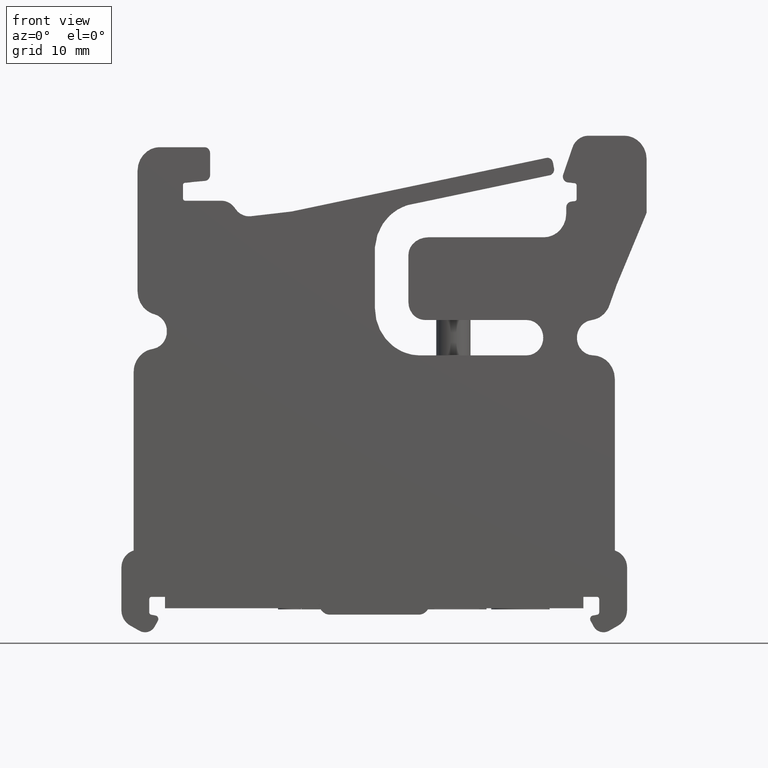
[diagram: clean part render]
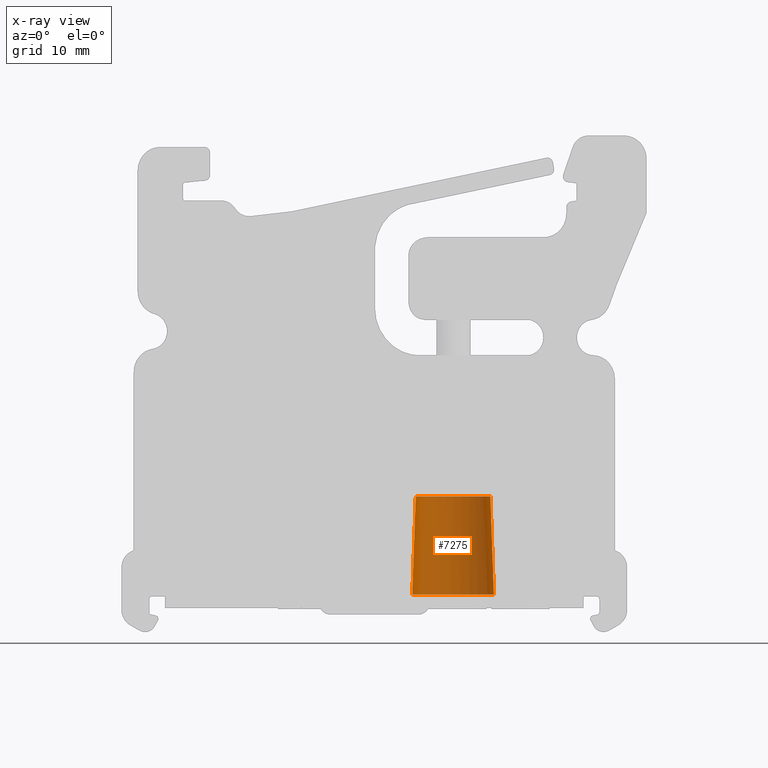
[diagram: x-ray — body ghosted, one internal face saturated and labeled with its STEP entity id]
A machine part, front view, then the same camera in x-ray: the body is ghosted and one INTERNAL B-rep face — a face not visible from any outside direction — is saturated and labeled: STEP entity #7275.
In plain terms, the highlighted face is a freeform B-spline surface patch.
Its self-contained STEP definition (entity closure, byte-faithful):
#2440 =( BOUNDED_SURFACE ( )  B_SPLINE_SURFACE ( 1, 3, ( 
 ( #3788, #3829, #3822, #3805, #3836, #3808, #3789 ),
 ( #3831, #3837, #3791, #3792, #3823, #3793, #3806 ) ),
 .UNSPECIFIED., .F., .F., .T. ) 
 B_SPLINE_SURFACE_WITH_KNOTS ( ( 2, 2 ),
 ( 4, 3, 4 ),
 ( 0.0000000000000000000, 1.000000000000000000 ),
 ( 0.0000000000000000000, 0.5000000000000000000, 1.000000000000000000 ),
 .UNSPECIFIED. ) 
 GEOMETRIC_REPRESENTATION_ITEM ( )  RATIONAL_B_SPLINE_SURFACE ( (
 ( 1.000000000000000000, 0.3333333333333333100, 0.3333333333333333100, 1.000000000000000000, 0.3333333333333333100, 0.3333333333333333100, 1.000000000000000000),
 ( 1.000000000000000000, 0.3333333333333333100, 0.3333333333333333100, 1.000000000000000000, 0.3333333333333333100, 0.3333333333333333100, 1.000000000000000000) ) ) 
 REPRESENTATION_ITEM ( '' )  SURFACE ( )  );
#2604 =( BOUNDED_CURVE ( )  B_SPLINE_CURVE ( 3, ( #13323, #13303, #13304, #13329 ),
 .UNSPECIFIED., .F., .T. ) 
 B_SPLINE_CURVE_WITH_KNOTS ( ( 4, 4 ),
 ( 0.0000000000000000000, 0.01022317686010355100 ),
 .UNSPECIFIED. ) 
 CURVE ( )  GEOMETRIC_REPRESENTATION_ITEM ( )  RATIONAL_B_SPLINE_CURVE ( ( 1.000000000000000000, 0.3333333333333333100, 0.3333333333333333100, 1.000000000000000000 ) ) 
 REPRESENTATION_ITEM ( '' )  );
#2610 =( BOUNDED_CURVE ( )  B_SPLINE_CURVE ( 3, ( #13571, #13611, #13588, #13590 ),
 .UNSPECIFIED., .F., .T. ) 
 B_SPLINE_CURVE_WITH_KNOTS ( ( 4, 4 ),
 ( 0.4999999999999999400, 1.000000000000000000 ),
 .UNSPECIFIED. ) 
 CURVE ( )  GEOMETRIC_REPRESENTATION_ITEM ( )  RATIONAL_B_SPLINE_CURVE ( ( 0.9632585184621677000, 0.3210861728207224900, 0.3210861728207224400, 0.9632585184621677000 ) ) 
 REPRESENTATION_ITEM ( '' )  );
#3788 = CARTESIAN_POINT ( 'NONE',  ( 3.348141096158415000, -5.001244392011025200, -0.4432724462719091500 ) ) ;
#3789 = CARTESIAN_POINT ( 'NONE',  ( 3.348141096158415000, -5.001244392011025200, -0.4432724462719091500 ) ) ;
#3791 = CARTESIAN_POINT ( 'NONE',  ( 10.19346375908942900, 1.546102767126963800, 8.150096226688548400 ) ) ;
#3792 = CARTESIAN_POINT ( 'NONE',  ( 10.19346375908943100, -5.001244392011025200, 8.150096226688550200 ) ) ;
#3793 = CARTESIAN_POINT ( 'NONE',  ( 3.658327246000228100, -11.54859155114901400, 8.150096226688456000 ) ) ;
#3805 = CARTESIAN_POINT ( 'NONE',  ( 10.50364990893146500, -5.001244392011025200, -0.4432724462718039000 ) ) ;
#3806 = CARTESIAN_POINT ( 'NONE',  ( 3.658327246000228100, -5.001244392011025200, 8.150096226688459600 ) ) ;
#3808 = CARTESIAN_POINT ( 'NONE',  ( 3.348141096158415500, -12.17012299212314200, -0.4432724462719089300 ) ) ;
#3822 = CARTESIAN_POINT ( 'NONE',  ( 10.50364990893146500, 2.167634208101092400, -0.4432724462718040100 ) ) ;
#3823 = CARTESIAN_POINT ( 'NONE',  ( 10.19346375908942900, -11.54859155114901400, 8.150096226688548400 ) ) ;
#3829 = CARTESIAN_POINT ( 'NONE',  ( 3.348141096158414200, 2.167634208101092900, -0.4432724462719089800 ) ) ;
#3831 = CARTESIAN_POINT ( 'NONE',  ( 3.658327246000228100, -5.001244392011025200, 8.150096226688459600 ) ) ;
#3835 = FACE_OUTER_BOUND ( 'NONE', #14480, .T. ) ;
#3836 = CARTESIAN_POINT ( 'NONE',  ( 10.50364990893146500, -12.17012299212314200, -0.4432724462718040100 ) ) ;
#3837 = CARTESIAN_POINT ( 'NONE',  ( 3.658327246000228100, 1.546102767126964900, 8.150096226688456000 ) ) ;
#7051 = CARTESIAN_POINT ( 'NONE',  ( 3.348141096158415000, -5.001244392011025200, -0.4432724462719091500 ) ) ;
#7126 = CARTESIAN_POINT ( 'NONE',  ( 3.658327246000228100, -5.001244392011025200, 8.150096226688456000 ) ) ;
#7151 = CARTESIAN_POINT ( 'NONE',  ( 10.50364990893146500, -5.001244392011025200, -0.4432724462718039000 ) ) ;
#7159 = CARTESIAN_POINT ( 'NONE',  ( 10.19346375908943100, -5.001244392011025200, 8.150096226688544800 ) ) ;
#7275 = ADVANCED_FACE ( 'NONE', ( #3835 ), #2440, .F. ) ;
#9804 = ORIENTED_EDGE ( 'NONE', *, *, #12241, .F. ) ;
#9806 = ORIENTED_EDGE ( 'NONE', *, *, #12238, .T. ) ;
#9823 = ORIENTED_EDGE ( 'NONE', *, *, #12249, .F. ) ;
#9838 = ORIENTED_EDGE ( 'NONE', *, *, #12200, .F. ) ;
#9937 = B_SPLINE_CURVE_WITH_KNOTS ( 'NONE', 1,
 ( #13578, #13609 ),
 .UNSPECIFIED., .F., .F.,
 ( 2, 2 ),
 ( 0.0000000000000000000, 1.000000000000000000 ),
 .UNSPECIFIED. ) ;
#9941 = B_SPLINE_CURVE_WITH_KNOTS ( 'NONE', 1,
 ( #13557, #13517 ),
 .UNSPECIFIED., .F., .F.,
 ( 2, 2 ),
 ( 0.0000000000000000000, 1.000000000000000000 ),
 .UNSPECIFIED. ) ;
#11576 = VERTEX_POINT ( 'NONE', #7051 ) ;
#11590 = VERTEX_POINT ( 'NONE', #7126 ) ;
#11686 = VERTEX_POINT ( 'NONE', #7159 ) ;
#11688 = VERTEX_POINT ( 'NONE', #7151 ) ;
#12200 = EDGE_CURVE ( 'NONE', #11590, #11686, #2604, .T. ) ;
#12238 = EDGE_CURVE ( 'NONE', #11688, #11686, #9941, .T. ) ;
#12241 = EDGE_CURVE ( 'NONE', #11688, #11576, #2610, .T. ) ;
#12249 = EDGE_CURVE ( 'NONE', #11576, #11590, #9937, .T. ) ;
#13303 = CARTESIAN_POINT ( 'NONE',  ( 3.658327246000234700, 1.546102767126952300, 8.150096226688630100 ) ) ;
#13304 = CARTESIAN_POINT ( 'NONE',  ( 10.19346375908942200, 1.546102767126950900, 8.150096226688724200 ) ) ;
#13323 = CARTESIAN_POINT ( 'NONE',  ( 3.658327246000228100, -5.001244392011025200, 8.150096226688456000 ) ) ;
#13329 = CARTESIAN_POINT ( 'NONE',  ( 10.19346375908943100, -5.001244392011025200, 8.150096226688544800 ) ) ;
#13517 = CARTESIAN_POINT ( 'NONE',  ( 10.19346375908943100, -5.001244392011025200, 8.150096226688544800 ) ) ;
#13557 = CARTESIAN_POINT ( 'NONE',  ( 10.50364990893146500, -5.001244392011025200, -0.4432724462718039000 ) ) ;
#13571 = CARTESIAN_POINT ( 'NONE',  ( 10.50364990893146500, -5.001244392011025200, -0.4432724462718039000 ) ) ;
#13578 = CARTESIAN_POINT ( 'NONE',  ( 3.348141096158415000, -5.001244392011025200, -0.4432724462719091500 ) ) ;
#13588 = CARTESIAN_POINT ( 'NONE',  ( 3.348141096158191200, 2.167634208101085800, -0.4432724462718159500 ) ) ;
#13590 = CARTESIAN_POINT ( 'NONE',  ( 3.348141096158415000, -5.001244392011025200, -0.4432724462719091500 ) ) ;
#13609 = CARTESIAN_POINT ( 'NONE',  ( 3.658327246000228100, -5.001244392011025200, 8.150096226688456000 ) ) ;
#13611 = CARTESIAN_POINT ( 'NONE',  ( 10.50364990893123400, 2.167634208101083100, -0.4432724462718160000 ) ) ;
#14480 = EDGE_LOOP ( 'NONE', ( #9804, #9806, #9838, #9823 ) ) ;